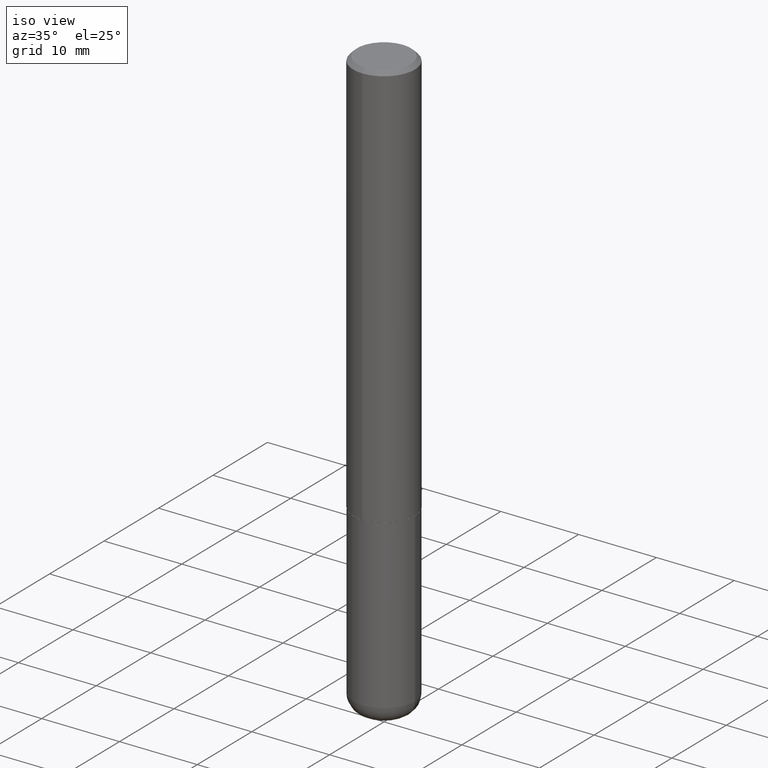
[diagram: clean part render]
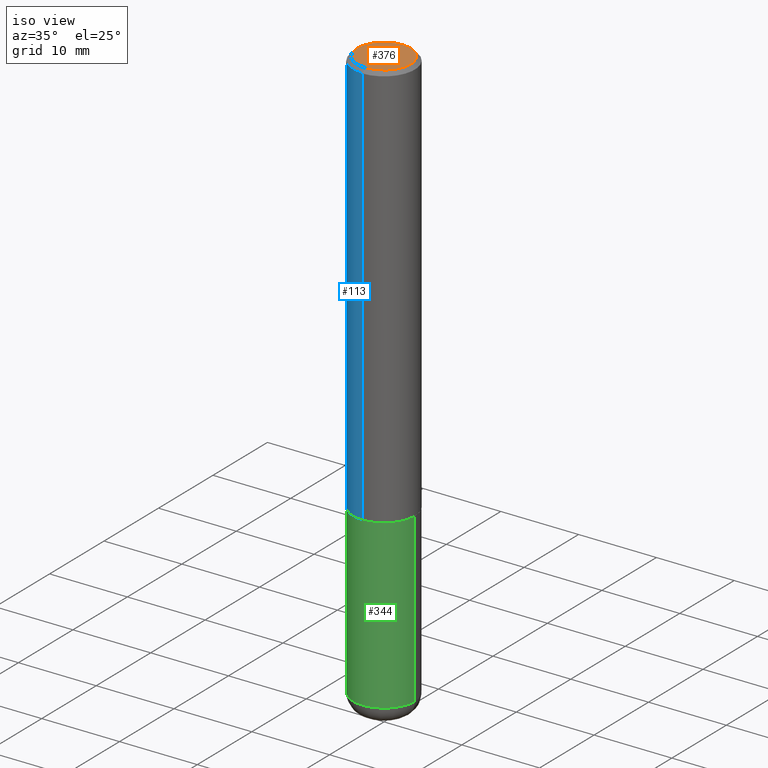
[diagram: same view with three faces highlighted in distinct colors, each labeled with its STEP entity id]
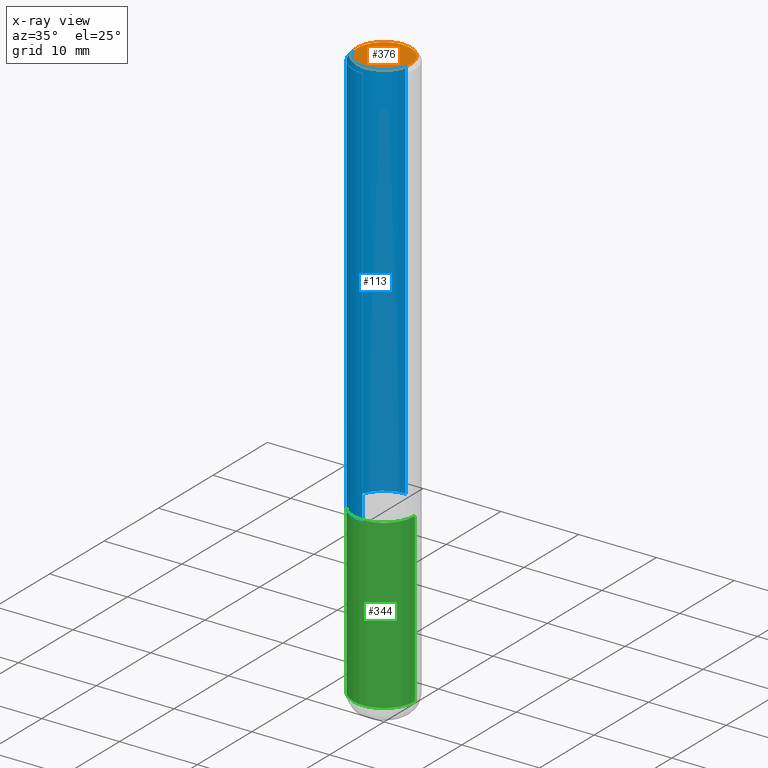
[diagram: x-ray of the same camera — body ghosted, the three highlighted faces saturated]
A machine part, iso view with three faces highlighted in distinct colors.
The next image is the same camera in x-ray (body ghosted, the three faces saturated) — at least one of them is partly hidden behind the body in this view.
Their STEP definitions:

[orange] entity #376 — the highlighted planar face has unit normal (0, -0, -1).
#11 = EDGE_CURVE ( 'NONE', #413, #173, #190, .T. ) ;
#13 = DIRECTION ( 'NONE',  ( 2.445176063107630653E-29, -3.491900563592034843E-15, -1.000000000000000000 ) ) ;
#78 = AXIS2_PLACEMENT_3D ( 'NONE', #205, #13, #142 ) ;
#87 = CARTESIAN_POINT ( 'NONE',  ( 1.021258291611617059E-15, 0.1362500000000001210, -5.653530947094876156E-16 ) ) ;
#93 = AXIS2_PLACEMENT_3D ( 'NONE', #418, #352, #405 ) ;
#104 = CIRCLE ( 'NONE', #218, 0.1362500000000001210 ) ;
#131 = EDGE_LOOP ( 'NONE', ( #412, #220 ) ) ;
#142 = DIRECTION ( 'NONE',  ( 6.982962677686265922E-15, 1.000000000000000000, -3.491900563592034843E-15 ) ) ;
#157 = CARTESIAN_POINT ( 'NONE',  ( -1.003347832174086672E-15, -0.1362500000000001210, 3.861898088693426789E-16 ) ) ;
#173 = VERTEX_POINT ( 'NONE', #87 ) ;
#178 = PLANE ( 'NONE',  #78 ) ;
#190 = CIRCLE ( 'NONE', #93, 0.1362500000000001210 ) ;
#195 = DIRECTION ( 'NONE',  ( -6.982962677686265922E-15, -1.000000000000000000, 3.491900563592034843E-15 ) ) ;
#205 = CARTESIAN_POINT ( 'NONE',  ( 9.514286648347545493E-16, 0.1362500000000001210, -5.205622732494513937E-16 ) ) ;
#218 = AXIS2_PLACEMENT_3D ( 'NONE', #357, #389, #195 ) ;
#220 = ORIENTED_EDGE ( 'NONE', *, *, #11, .T. ) ;
#239 = FACE_OUTER_BOUND ( 'NONE', #131, .T. ) ;
#255 = EDGE_CURVE ( 'NONE', #173, #413, #104, .T. ) ;
#352 = DIRECTION ( 'NONE',  ( -2.445176063107630933E-29, 3.491900563592034843E-15, 1.000000000000000000 ) ) ;
#357 = CARTESIAN_POINT ( 'NONE',  ( 2.190428889620163364E-45, -3.128101894001013777E-31, -8.958164292007245599E-17 ) ) ;
#376 = ADVANCED_FACE ( 'NONE', ( #239 ), #178, .F. ) ;
#389 = DIRECTION ( 'NONE',  ( -2.445176063107630933E-29, 3.491900563592034843E-15, 1.000000000000000000 ) ) ;
#405 = DIRECTION ( 'NONE',  ( -6.982962677686265922E-15, -1.000000000000000000, 3.491900563592034843E-15 ) ) ;
#412 = ORIENTED_EDGE ( 'NONE', *, *, #255, .T. ) ;
#413 = VERTEX_POINT ( 'NONE', #157 ) ;
#418 = CARTESIAN_POINT ( 'NONE',  ( 2.190428889620163364E-45, -3.128101894001013777E-31, -8.958164292007245599E-17 ) ) ;

[blue] entity #113 — the highlighted cylindrical surface (partial cylindrical patch) has radius 3.9688 mm, axis along (-0, 0, 1).
#5 = DIRECTION ( 'NONE',  ( -2.445176063107630933E-29, 3.491900563592034843E-15, 1.000000000000000000 ) ) ;
#15 = CYLINDRICAL_SURFACE ( 'NONE', #308, 0.1562500000000001388 ) ;
#27 = DIRECTION ( 'NONE',  ( -2.445176063107631214E-29, 3.491900563592034843E-15, 1.000000000000000000 ) ) ;
#32 = DIRECTION ( 'NONE',  ( -6.982962677686265922E-15, -1.000000000000000000, 3.491900563592035238E-15 ) ) ;
#46 = CARTESIAN_POINT ( 'NONE',  ( 1.091087918388479568E-15, 0.1562499999999999445, -0.02000000000000057981 ) ) ;
#52 = VECTOR ( 'NONE', #27, 39.37007874015748143 ) ;
#72 = CARTESIAN_POINT ( 'NONE',  ( 1.110223024625157329E-15, 0.1562500000000001388, -5.456094630612559989E-16 ) ) ;
#91 = DIRECTION ( 'NONE',  ( -6.982962677686265133E-15, -1.000000000000000000, 3.496765431890256920E-15 ) ) ;
#92 = VERTEX_POINT ( 'NONE', #403 ) ;
#97 = FACE_OUTER_BOUND ( 'NONE', #152, .T. ) ;
#103 = CARTESIAN_POINT ( 'NONE',  ( 5.040730454096381281E-29, -7.198553011844980434E-15, -2.061500000000000110 ) ) ;
#113 = ADVANCED_FACE ( 'NONE', ( #97 ), #15, .T. ) ;
#115 = AXIS2_PLACEMENT_3D ( 'NONE', #103, #189, #312 ) ;
#119 = CARTESIAN_POINT ( 'NONE',  ( 4.890352126215269679E-31, -6.983801127184080238E-17, -0.02000000000000003511 ) ) ;
#149 = ORIENTED_EDGE ( 'NONE', *, *, #324, .T. ) ;
#152 = EDGE_LOOP ( 'NONE', ( #280, #288, #149, #243 ) ) ;
#182 = VERTEX_POINT ( 'NONE', #328 ) ;
#189 = DIRECTION ( 'NONE',  ( -2.445176063107630933E-29, 3.491900563592034843E-15, 1.000000000000000000 ) ) ;
#240 = DIRECTION ( 'NONE',  ( -2.445176063107630933E-29, 3.491900563592034843E-15, 1.000000000000000000 ) ) ;
#243 = ORIENTED_EDGE ( 'NONE', *, *, #318, .F. ) ;
#246 = VERTEX_POINT ( 'NONE', #46 ) ;
#273 = CARTESIAN_POINT ( 'NONE',  ( 0.000000000000000000, 0.000000000000000000, 0.000000000000000000 ) ) ;
#274 = VERTEX_POINT ( 'NONE', #285 ) ;
#276 = LINE ( 'NONE', #406, #309 ) ;
#280 = ORIENTED_EDGE ( 'NONE', *, *, #297, .F. ) ;
#284 = AXIS2_PLACEMENT_3D ( 'NONE', #119, #240, #91 ) ;
#285 = CARTESIAN_POINT ( 'NONE',  ( -1.071952812151801215E-15, -0.1562500000000000833, -0.01999999999999948694 ) ) ;
#286 = EDGE_CURVE ( 'NONE', #182, #92, #375, .T. ) ;
#288 = ORIENTED_EDGE ( 'NONE', *, *, #286, .T. ) ;
#297 = EDGE_CURVE ( 'NONE', #182, #246, #345, .T. ) ;
#308 = AXIS2_PLACEMENT_3D ( 'NONE', #273, #5, #32 ) ;
#309 = VECTOR ( 'NONE', #397, 39.37007874015748143 ) ;
#312 = DIRECTION ( 'NONE',  ( -6.982962677686265922E-15, -1.000000000000000000, 3.496765431890250609E-15 ) ) ;
#318 = EDGE_CURVE ( 'NONE', #246, #274, #385, .T. ) ;
#324 = EDGE_CURVE ( 'NONE', #92, #274, #276, .T. ) ;
#328 = CARTESIAN_POINT ( 'NONE',  ( 1.110223024625183362E-15, 0.1562499999999930611, -2.061500000000000554 ) ) ;
#345 = LINE ( 'NONE', #72, #52 ) ;
#375 = CIRCLE ( 'NONE', #115, 0.1562500000000002776 ) ;
#385 = CIRCLE ( 'NONE', #284, 0.1562500000000000000 ) ;
#397 = DIRECTION ( 'NONE',  ( -2.445176063107631214E-29, 3.491900563592034843E-15, 1.000000000000000000 ) ) ;
#403 = CARTESIAN_POINT ( 'NONE',  ( -1.091087918388430659E-15, -0.1562500000000074940, -2.061499999999999666 ) ) ;
#406 = CARTESIAN_POINT ( 'NONE',  ( -1.091087918388479962E-15, -0.1562500000000001388, 5.456094630612559989E-16 ) ) ;

[green] entity #344 — the highlighted cylindrical surface (partial cylindrical patch) has radius 3.9688 mm, axis along (-0, 0, 1).
#17 = LINE ( 'NONE', #365, #217 ) ;
#47 = ORIENTED_EDGE ( 'NONE', *, *, #63, .T. ) ;
#51 = CARTESIAN_POINT ( 'NONE',  ( 0.1562499999999998335, -1.125129861442203147E-14, -2.910000000000000586 ) ) ;
#60 = LINE ( 'NONE', #268, #128 ) ;
#63 = EDGE_CURVE ( 'NONE', #366, #106, #17, .T. ) ;
#82 = DIRECTION ( 'NONE',  ( 1.000000000000000000, -6.982962677686262766E-15, 0.000000000000000000 ) ) ;
#83 = CARTESIAN_POINT ( 'NONE',  ( 5.043779412756844791E-29, -7.201180261363988578E-15, -2.062500000000000000 ) ) ;
#88 = DIRECTION ( 'NONE',  ( -2.445468806185136597E-29, 3.491481338843145583E-15, 1.000000000000000000 ) ) ;
#90 = VERTEX_POINT ( 'NONE', #122 ) ;
#106 = VERTEX_POINT ( 'NONE', #146 ) ;
#116 = FACE_OUTER_BOUND ( 'NONE', #118, .T. ) ;
#118 = EDGE_LOOP ( 'NONE', ( #170, #302, #47, #154 ) ) ;
#122 = CARTESIAN_POINT ( 'NONE',  ( -0.1562499999999998335, -9.049987671408398127E-15, -2.910000000000000586 ) ) ;
#128 = VECTOR ( 'NONE', #292, 39.37007874015748143 ) ;
#133 = AXIS2_PLACEMENT_3D ( 'NONE', #209, #88, #216 ) ;
#140 = CIRCLE ( 'NONE', #150, 0.1562500000000000000 ) ;
#146 = CARTESIAN_POINT ( 'NONE',  ( 0.1562500000000000000, -8.292268179752468540E-15, -2.062500000000000000 ) ) ;
#150 = AXIS2_PLACEMENT_3D ( 'NONE', #334, #394, #82 ) ;
#154 = ORIENTED_EDGE ( 'NONE', *, *, #339, .F. ) ;
#170 = ORIENTED_EDGE ( 'NONE', *, *, #356, .F. ) ;
#176 = CYLINDRICAL_SURFACE ( 'NONE', #133, 0.1562500000000000000 ) ;
#203 = DIRECTION ( 'NONE',  ( -2.445468806185136597E-29, 3.491481338843145583E-15, 1.000000000000000000 ) ) ;
#209 = CARTESIAN_POINT ( 'NONE',  ( 0.000000000000000000, 0.000000000000000000, 0.000000000000000000 ) ) ;
#216 = DIRECTION ( 'NONE',  ( 1.000000000000000000, -6.982962677686266711E-15, 4.876176775795936353E-29 ) ) ;
#217 = VECTOR ( 'NONE', #295, 39.37007874015748143 ) ;
#252 = CIRCLE ( 'NONE', #266, 0.1562500000000000000 ) ;
#266 = AXIS2_PLACEMENT_3D ( 'NONE', #83, #203, #332 ) ;
#268 = CARTESIAN_POINT ( 'NONE',  ( -0.1562500000000000000, 1.110223024625156540E-15, -7.685836078523291160E-30 ) ) ;
#292 = DIRECTION ( 'NONE',  ( -2.445468806185136877E-29, 3.491481338843145188E-15, 1.000000000000000000 ) ) ;
#295 = DIRECTION ( 'NONE',  ( -2.445468806185136877E-29, 3.491481338843145188E-15, 1.000000000000000000 ) ) ;
#302 = ORIENTED_EDGE ( 'NONE', *, *, #390, .T. ) ;
#304 = VERTEX_POINT ( 'NONE', #414 ) ;
#332 = DIRECTION ( 'NONE',  ( 1.000000000000000000, -6.982962677686269077E-15, 0.000000000000000000 ) ) ;
#334 = CARTESIAN_POINT ( 'NONE',  ( 7.116314225998749245E-29, -1.016021069603355467E-14, -2.910000000000000586 ) ) ;
#339 = EDGE_CURVE ( 'NONE', #304, #106, #252, .T. ) ;
#344 = ADVANCED_FACE ( 'NONE', ( #116 ), #176, .T. ) ;
#356 = EDGE_CURVE ( 'NONE', #90, #304, #60, .T. ) ;
#365 = CARTESIAN_POINT ( 'NONE',  ( 0.1562500000000000000, -1.091087918388479174E-15, 7.619026212181150377E-30 ) ) ;
#366 = VERTEX_POINT ( 'NONE', #51 ) ;
#390 = EDGE_CURVE ( 'NONE', #90, #366, #140, .T. ) ;
#394 = DIRECTION ( 'NONE',  ( -2.445468806185136597E-29, 3.491481338843145583E-15, 1.000000000000000000 ) ) ;
#414 = CARTESIAN_POINT ( 'NONE',  ( -0.1562500000000000000, -7.570472454073614293E-15, -2.062500000000000000 ) ) ;